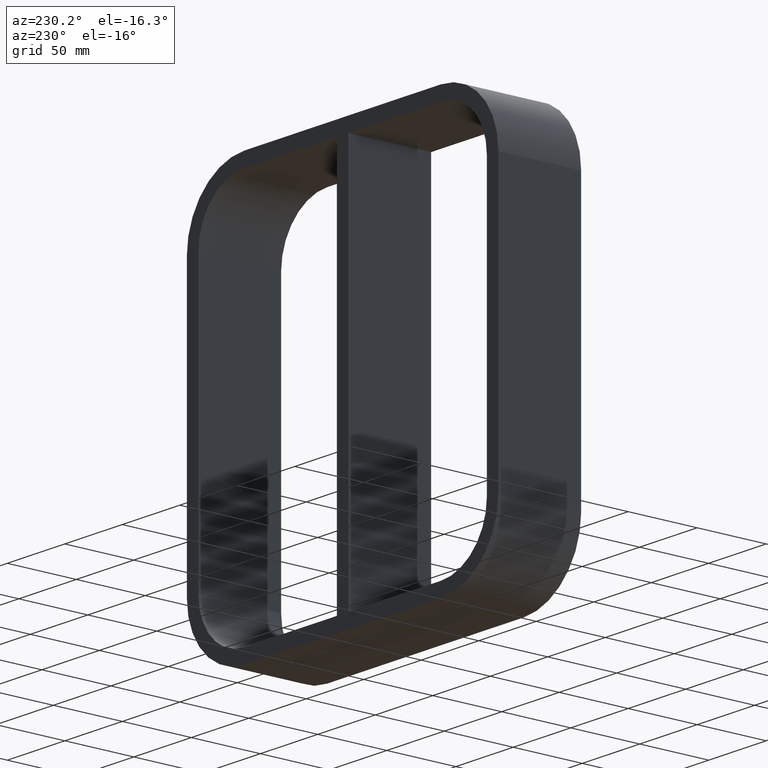
[diagram: clean part render]
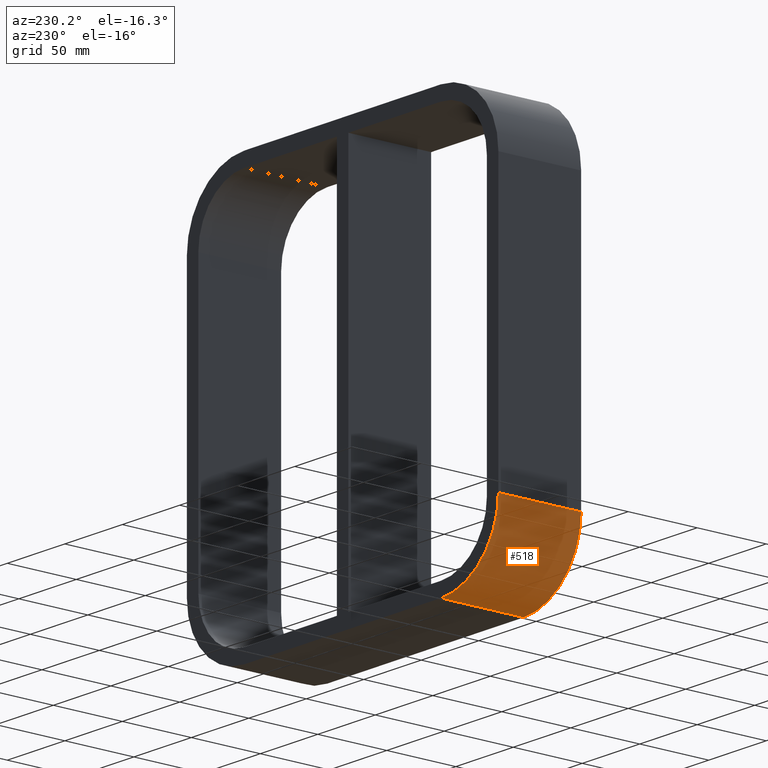
[diagram: same view with one face highlighted and labeled with its STEP entity id]
A machine part, auxiliary view. The second image highlights one B-rep face of the part: STEP entity #518.
In plain terms, the highlighted cylindrical surface (partial cylindrical patch) has radius 50 mm, axis along (0, 1, 0).
Its self-contained STEP definition (entity closure, byte-faithful):
#354=CARTESIAN_POINT('',(-135.5,-3.0,-98.999999999999986));
#355=VERTEX_POINT('',#354);
#362=CARTESIAN_POINT('',(-85.499999999999986,-3.0,-149.0));
#363=VERTEX_POINT('',#362);
#364=CARTESIAN_POINT('',(-85.499999999999986,-3.0,-98.999999999999986));
#365=DIRECTION('',(0.0,1.0,0.0));
#366=DIRECTION('',(-0.707106781186547,0.0,-0.707106781186547));
#367=AXIS2_PLACEMENT_3D('',#364,#365,#366);
#368=CIRCLE('',#367,49.999999999999986);
#369=EDGE_CURVE('',#363,#355,#368,.T.);
#487=CARTESIAN_POINT('',(-85.499999999999986,0.0,-98.999999999999986));
#488=DIRECTION('',(0.0,1.0,0.0));
#489=DIRECTION('',(-0.707106781186547,0.0,-0.707106781186547));
#490=AXIS2_PLACEMENT_3D('',#487,#488,#489);
#491=CYLINDRICAL_SURFACE('',#490,49.999999999999993);
#492=CARTESIAN_POINT('',(-135.5,57.0,-98.999999999999986));
#493=VERTEX_POINT('',#492);
#494=CARTESIAN_POINT('',(-85.499999999999986,57.0,-149.0));
#495=VERTEX_POINT('',#494);
#496=CARTESIAN_POINT('',(-85.499999999999986,57.0,-98.999999999999986));
#497=DIRECTION('',(0.0,-1.0,0.0));
#498=DIRECTION('',(-0.707106781186547,0.0,-0.707106781186547));
#499=AXIS2_PLACEMENT_3D('',#496,#497,#498);
#500=CIRCLE('',#499,49.999999999999986);
#501=EDGE_CURVE('',#493,#495,#500,.T.);
#502=ORIENTED_EDGE('',*,*,#501,.T.);
#503=CARTESIAN_POINT('',(-85.499999999999986,57.0,-149.0));
#504=DIRECTION('',(0.0,-1.0,0.0));
#505=VECTOR('',#504,60.0);
#506=LINE('',#503,#505);
#507=EDGE_CURVE('',#495,#363,#506,.T.);
#508=ORIENTED_EDGE('',*,*,#507,.T.);
#509=ORIENTED_EDGE('',*,*,#369,.T.);
#510=CARTESIAN_POINT('',(-135.5,-3.0,-98.999999999999986));
#511=DIRECTION('',(0.0,1.0,0.0));
#512=VECTOR('',#511,60.0);
#513=LINE('',#510,#512);
#514=EDGE_CURVE('',#355,#493,#513,.T.);
#515=ORIENTED_EDGE('',*,*,#514,.T.);
#516=EDGE_LOOP('',(#502,#508,#509,#515));
#517=FACE_OUTER_BOUND('',#516,.T.);
#518=ADVANCED_FACE('',(#517),#491,.T.);